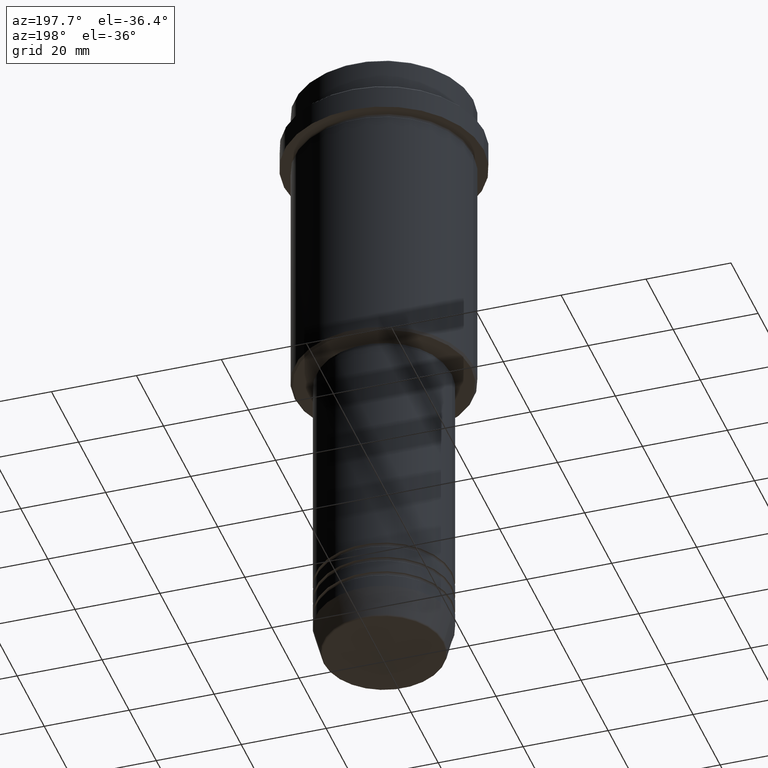
[diagram: clean part render]
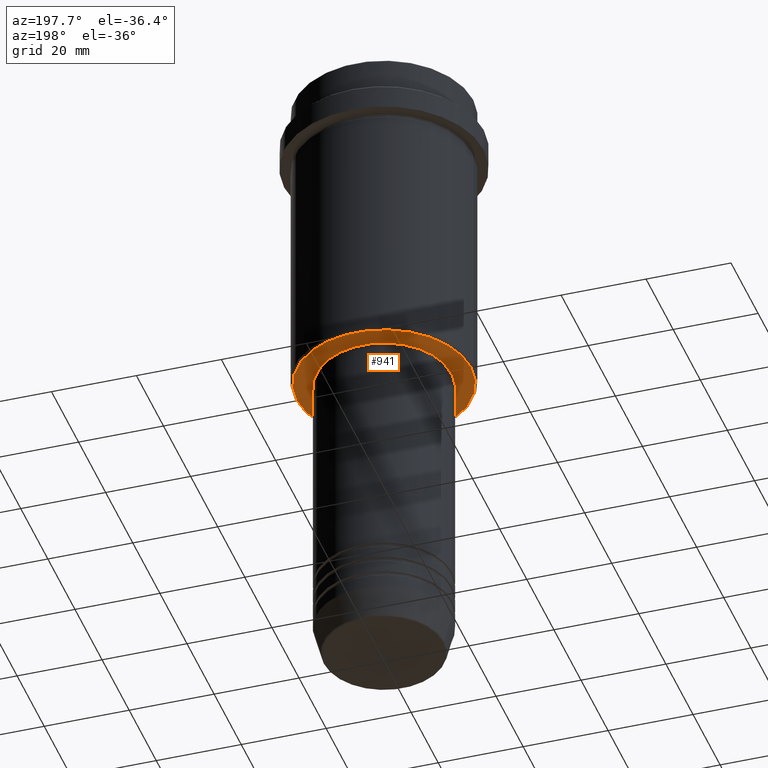
[diagram: same view with one face highlighted and labeled with its STEP entity id]
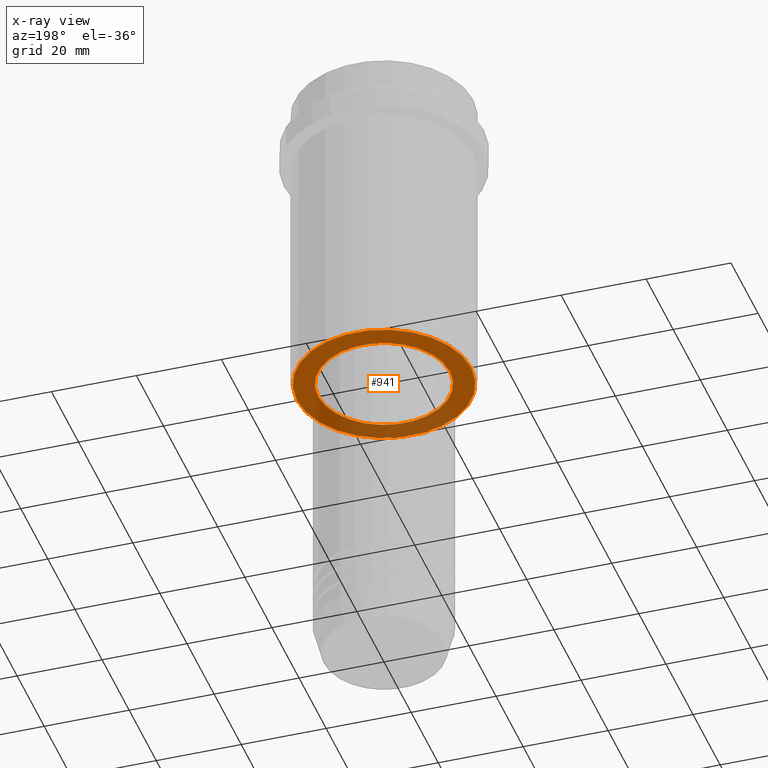
[diagram: x-ray of the same camera — body ghosted, the highlighted face saturated]
A machine part, auxiliary view. The second image highlights one B-rep face of the part: STEP entity #941.
The next image is the same camera in x-ray: the body ghosted, the highlighted face saturated — about 32% of this face is hidden behind the body in this view.
In plain terms, the highlighted planar face has unit normal (0, 0, -1).
Its self-contained STEP definition (entity closure, byte-faithful):
#19 = DIRECTION ( 'NONE',  ( 1.000000000000000000, 0.000000000000000000, 0.000000000000000000 ) ) ;
#92 = CARTESIAN_POINT ( 'NONE',  ( 0.000000000000000000, 0.000000000000000000, -75.00000000000000000 ) ) ;
#98 = EDGE_LOOP ( 'NONE', ( #499, #603 ) ) ;
#192 = CARTESIAN_POINT ( 'NONE',  ( 0.000000000000000000, 0.000000000000000000, -75.00000000000000000 ) ) ;
#241 = VERTEX_POINT ( 'NONE', #1013 ) ;
#255 = DIRECTION ( 'NONE',  ( -0.000000000000000000, -0.000000000000000000, 1.000000000000000000 ) ) ;
#287 = DIRECTION ( 'NONE',  ( 0.000000000000000000, 0.000000000000000000, -1.000000000000000000 ) ) ;
#300 = DIRECTION ( 'NONE',  ( -0.000000000000000000, -0.000000000000000000, 1.000000000000000000 ) ) ;
#307 = PLANE ( 'NONE',  #1163 ) ;
#316 = CARTESIAN_POINT ( 'NONE',  ( 0.000000000000000000, 21.00000000000000000, -75.00000000000000000 ) ) ;
#356 = VERTEX_POINT ( 'NONE', #594 ) ;
#397 = VERTEX_POINT ( 'NONE', #634 ) ;
#418 = DIRECTION ( 'NONE',  ( 0.000000000000000000, 0.000000000000000000, -1.000000000000000000 ) ) ;
#499 = ORIENTED_EDGE ( 'NONE', *, *, #827, .T. ) ;
#539 = DIRECTION ( 'NONE',  ( -1.000000000000000000, 0.000000000000000000, 0.000000000000000000 ) ) ;
#571 = CARTESIAN_POINT ( 'NONE',  ( -15.49999999999999645, 1.898202538678397163E-15, -75.00000000000000000 ) ) ;
#594 = CARTESIAN_POINT ( 'NONE',  ( 15.49999999999999645, 0.000000000000000000, -75.00000000000000000 ) ) ;
#603 = ORIENTED_EDGE ( 'NONE', *, *, #782, .T. ) ;
#613 = DIRECTION ( 'NONE',  ( -1.000000000000000000, 0.000000000000000000, -0.000000000000000000 ) ) ;
#634 = CARTESIAN_POINT ( 'NONE',  ( -20.49999999999998934, 2.541142108230757480E-15, -75.00000000000000000 ) ) ;
#734 = CIRCLE ( 'NONE', #906, 15.49999999999999645 ) ;
#782 = EDGE_CURVE ( 'NONE', #1158, #356, #1339, .T. ) ;
#787 = CARTESIAN_POINT ( 'NONE',  ( 0.000000000000000000, 0.000000000000000000, -75.00000000000000000 ) ) ;
#812 = ORIENTED_EDGE ( 'NONE', *, *, #916, .T. ) ;
#827 = EDGE_CURVE ( 'NONE', #356, #1158, #734, .T. ) ;
#906 = AXIS2_PLACEMENT_3D ( 'NONE', #1144, #300, #931 ) ;
#916 = EDGE_CURVE ( 'NONE', #397, #241, #1341, .T. ) ;
#931 = DIRECTION ( 'NONE',  ( 1.000000000000000000, 0.000000000000000000, 0.000000000000000000 ) ) ;
#935 = AXIS2_PLACEMENT_3D ( 'NONE', #787, #255, #19 ) ;
#941 = ADVANCED_FACE ( 'NONE', ( #1150, #1273 ), #307, .T. ) ;
#979 = AXIS2_PLACEMENT_3D ( 'NONE', #92, #418, #539 ) ;
#1002 = EDGE_LOOP ( 'NONE', ( #1023, #812 ) ) ;
#1013 = CARTESIAN_POINT ( 'NONE',  ( 20.49999999999998934, 0.000000000000000000, -75.00000000000000000 ) ) ;
#1023 = ORIENTED_EDGE ( 'NONE', *, *, #1056, .T. ) ;
#1026 = CIRCLE ( 'NONE', #979, 20.49999999999998934 ) ;
#1056 = EDGE_CURVE ( 'NONE', #241, #397, #1026, .T. ) ;
#1060 = DIRECTION ( 'NONE',  ( -1.000000000000000000, 0.000000000000000000, 0.000000000000000000 ) ) ;
#1144 = CARTESIAN_POINT ( 'NONE',  ( 0.000000000000000000, 0.000000000000000000, -75.00000000000000000 ) ) ;
#1150 = FACE_OUTER_BOUND ( 'NONE', #1002, .T. ) ;
#1158 = VERTEX_POINT ( 'NONE', #571 ) ;
#1163 = AXIS2_PLACEMENT_3D ( 'NONE', #316, #287, #613 ) ;
#1258 = DIRECTION ( 'NONE',  ( 0.000000000000000000, 0.000000000000000000, -1.000000000000000000 ) ) ;
#1273 = FACE_BOUND ( 'NONE', #98, .T. ) ;
#1295 = AXIS2_PLACEMENT_3D ( 'NONE', #192, #1258, #1060 ) ;
#1339 = CIRCLE ( 'NONE', #935, 15.49999999999999645 ) ;
#1341 = CIRCLE ( 'NONE', #1295, 20.49999999999998934 ) ;